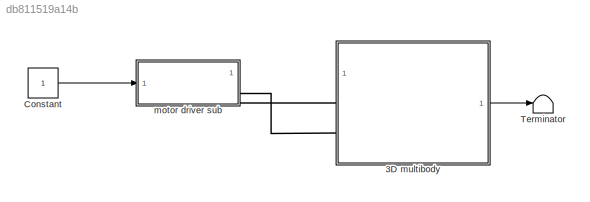
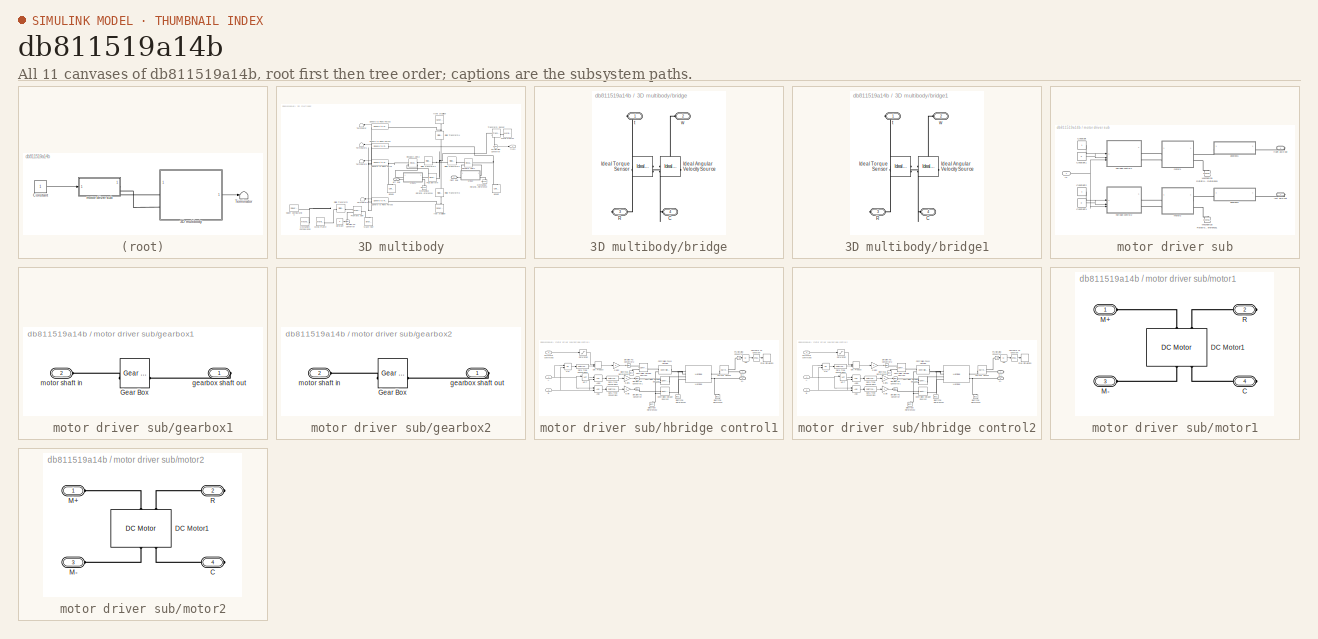
[diagram: thumbnail index - all 11 canvases of the model, root first then tree order]
MODEL slx_db811519a14b
KIND model
CONFIG AbsTol = auto
CONFIG EnableMultiTasking = off
CONFIG FixedStep = auto
CONFIG MaxStep = 0.05
CONFIG MinStep = auto
CONFIG RelTol = 1e-3
CONFIG SampleTimeConstraint = Unconstrained
CONFIG SolverName = VariableStepAuto
CONFIG StartTime = 0.0
CONFIG StopTime = 5
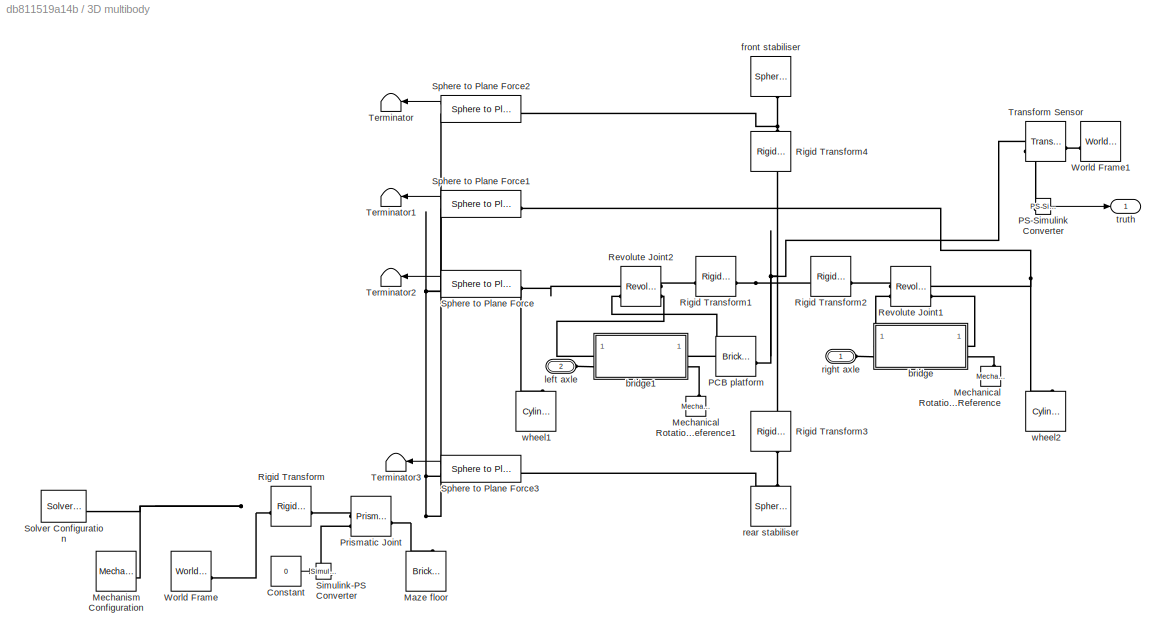
BLOCK [SubSystem] 3D multibody
BLOCK [Constant] 3D multibody/Constant
  Value = 0
BLOCK [Reference] 3D multibody/Maze floor  REF=sm_lib/Body Elements/Brick Solid
  NameLocation = right
  SourceBlock = sm_lib/Body Elements/Brick Solid
  SourceType = Brick Solid
BLOCK [Reference] 3D multibody/Mechanical Rotational Reference  REF=fl_lib/Mechanical/Rotational Elements/Mechanical
Rotational Reference
  NameLocation = right
  SourceBlock = fl_lib/Mechanical/Rotational Elements/Mechanical\nRotational Reference
  SourceType = Mechanical\nRotational Reference
BLOCK [Reference] 3D multibody/Mechanical Rotational Reference1  REF=fl_lib/Mechanical/Rotational Elements/Mechanical
Rotational Reference
  NameLocation = right
  SourceBlock = fl_lib/Mechanical/Rotational Elements/Mechanical\nRotational Reference
  SourceType = Mechanical\nRotational Reference
BLOCK [Reference] 3D multibody/Mechanism Configuration  REF=sm_lib/Utilities/Mechanism
Configuration
  SourceBlock = sm_lib/Utilities/Mechanism\nConfiguration
  SourceType = Mechanism\nConfiguration
BLOCK [Reference] 3D multibody/PCB platform  REF=sm_lib/Body Elements/Brick Solid
  SourceBlock = sm_lib/Body Elements/Brick Solid
  SourceType = Brick Solid
BLOCK [Reference] 3D multibody/PS-Simulink Converter  REF=nesl_utility/PS-Simulink
Converter
  SourceBlock = nesl_utility/PS-Simulink\nConverter
  SourceType = PS-Simulink\nConverter
BLOCK [Reference] 3D multibody/Prismatic Joint  REF=sm_lib/Joints/Prismatic
Joint
  SourceBlock = sm_lib/Joints/Prismatic\nJoint
  SourceType = Prismatic\nJoint
BLOCK [Reference] 3D multibody/Revolute Joint1  REF=sm_lib/Joints/Revolute Joint
  SourceBlock = sm_lib/Joints/Revolute Joint
  SourceType = Revolute Joint
BLOCK [Reference] 3D multibody/Revolute Joint2  REF=sm_lib/Joints/Revolute Joint
  NameLocation = top
  SourceBlock = sm_lib/Joints/Revolute Joint
  SourceType = Revolute Joint
BLOCK [Reference] 3D multibody/Rigid Transform  REF=sm_lib/Frames and
Transforms/Rigid
Transform
  SourceBlock = sm_lib/Frames and\nTransforms/Rigid\nTransform
  SourceType = Rigid\nTransform
BLOCK [Reference] 3D multibody/Rigid Transform1  REF=sm_lib/Frames and
Transforms/Rigid
Transform
  NameLocation = top
  SourceBlock = sm_lib/Frames and\nTransforms/Rigid\nTransform
  SourceType = Rigid\nTransform
BLOCK [Reference] 3D multibody/Rigid Transform2  REF=sm_lib/Frames and
Transforms/Rigid
Transform
  SourceBlock = sm_lib/Frames and\nTransforms/Rigid\nTransform
  SourceType = Rigid\nTransform
BLOCK [Reference] 3D multibody/Rigid Transform3  REF=sm_lib/Frames and
Transforms/Rigid
Transform
  NameLocation = left
  SourceBlock = sm_lib/Frames and\nTransforms/Rigid\nTransform
  SourceType = Rigid\nTransform
BLOCK [Reference] 3D multibody/Rigid Transform4  REF=sm_lib/Frames and
Transforms/Rigid
Transform
  NameLocation = right
  SourceBlock = sm_lib/Frames and\nTransforms/Rigid\nTransform
  SourceType = Rigid\nTransform
BLOCK [Reference] 3D multibody/Simulink-PS Converter  REF=nesl_utility/Simulink-PS
Converter
  SourceBlock = nesl_utility/Simulink-PS\nConverter
  SourceType = Simulink-PS\nConverter
BLOCK [Reference] 3D multibody/Solver Configuration  REF=nesl_utility/Solver
Configuration
  SourceBlock = nesl_utility/Solver\nConfiguration
  SourceType = Solver\nConfiguration
BLOCK [Reference] 3D multibody/Sphere to Plane Force  REF=Contact_Forces_Lib/3D/Sphere to Plane Force
  SourceBlock = Contact_Forces_Lib/3D/Sphere to Plane Force
  SourceType = Sphere to Plane Force
BLOCK [Reference] 3D multibody/Sphere to Plane Force1  REF=Contact_Forces_Lib/3D/Sphere to Plane Force
  SourceBlock = Contact_Forces_Lib/3D/Sphere to Plane Force
  SourceType = Sphere to Plane Force
BLOCK [Reference] 3D multibody/Sphere to Plane Force2  REF=Contact_Forces_Lib/3D/Sphere to Plane Force
  SourceBlock = Contact_Forces_Lib/3D/Sphere to Plane Force
  SourceType = Sphere to Plane Force
BLOCK [Reference] 3D multibody/Sphere to Plane Force3  REF=Contact_Forces_Lib/3D/Sphere to Plane Force
  SourceBlock = Contact_Forces_Lib/3D/Sphere to Plane Force
  SourceType = Sphere to Plane Force
BLOCK [Terminator] 3D multibody/Terminator
  NameLocation = top
BLOCK [Terminator] 3D multibody/Terminator1
  NameLocation = top
BLOCK [Terminator] 3D multibody/Terminator2
  NameLocation = top
BLOCK [Terminator] 3D multibody/Terminator3
  NameLocation = top
BLOCK [Reference] 3D multibody/Transform Sensor  REF=sm_lib/Frames and
Transforms/Transform
Sensor
  NameLocation = top
  SourceBlock = sm_lib/Frames and\nTransforms/Transform\nSensor
  SourceType = Transform\nSensor
BLOCK [Reference] 3D multibody/World Frame  REF=sm_lib/Frames and
Transforms/World Frame
  SourceBlock = sm_lib/Frames and\nTransforms/World Frame
  SourceType = World Frame
BLOCK [Reference] 3D multibody/World Frame1  REF=sm_lib/Frames and
Transforms/World Frame
  NameLocation = top
  SourceBlock = sm_lib/Frames and\nTransforms/World Frame
  SourceType = World Frame
BLOCK [SubSystem] 3D multibody/bridge
BLOCK [PMIOPort] 3D multibody/bridge/C
  Port = 4
  Side = Right
BLOCK [Reference] 3D multibody/bridge/Ideal Angular Velocity Source  REF=fl_lib/Mechanical/Mechanical Sources/Ideal Angular
Velocity Source
  NameLocation = top
  SourceBlock = fl_lib/Mechanical/Mechanical Sources/Ideal Angular\nVelocity Source
  SourceType = Ideal Angular\nVelocity Source
BLOCK [Reference] 3D multibody/bridge/Ideal Torque Sensor  REF=fl_lib/Mechanical/Mechanical Sensors/Ideal Torque Sensor
  NameLocation = top
  SourceBlock = fl_lib/Mechanical/Mechanical Sensors/Ideal Torque Sensor
  SourceType = Ideal Torque Sensor
BLOCK [PMIOPort] 3D multibody/bridge/R
  Port = 3
  Side = Left
BLOCK [PMIOPort] 3D multibody/bridge/t
  Side = Left
BLOCK [PMIOPort] 3D multibody/bridge/w
  Port = 2
  Side = Right
BLOCK [SubSystem] 3D multibody/bridge1
BLOCK [PMIOPort] 3D multibody/bridge1/C
  Port = 4
  Side = Right
BLOCK [Reference] 3D multibody/bridge1/Ideal Angular Velocity Source  REF=fl_lib/Mechanical/Mechanical Sources/Ideal Angular
Velocity Source
  NameLocation = top
  SourceBlock = fl_lib/Mechanical/Mechanical Sources/Ideal Angular\nVelocity Source
  SourceType = Ideal Angular\nVelocity Source
BLOCK [Reference] 3D multibody/bridge1/Ideal Torque Sensor  REF=fl_lib/Mechanical/Mechanical Sensors/Ideal Torque Sensor
  NameLocation = top
  SourceBlock = fl_lib/Mechanical/Mechanical Sensors/Ideal Torque Sensor
  SourceType = Ideal Torque Sensor
BLOCK [PMIOPort] 3D multibody/bridge1/R
  Port = 3
  Side = Left
BLOCK [PMIOPort] 3D multibody/bridge1/t
  Side = Left
BLOCK [PMIOPort] 3D multibody/bridge1/w
  Port = 2
  Side = Right
BLOCK [Reference] 3D multibody/front stabiliser  REF=sm_lib/Body Elements/Spherical Solid
  NameLocation = left
  SourceBlock = sm_lib/Body Elements/Spherical Solid
  SourceType = Spherical Solid
BLOCK [PMIOPort] 3D multibody/left axle
  Port = 2
  Side = Left
BLOCK [Reference] 3D multibody/rear stabiliser  REF=sm_lib/Body Elements/Spherical Solid
  NameLocation = right
  SourceBlock = sm_lib/Body Elements/Spherical Solid
  SourceType = Spherical Solid
BLOCK [PMIOPort] 3D multibody/right axle
  Side = Left
BLOCK [Outport] 3D multibody/truth
BLOCK [Reference] 3D multibody/wheel1  REF=sm_lib/Body Elements/Cylindrical Solid
  NameLocation = right
  SourceBlock = sm_lib/Body Elements/Cylindrical Solid
  SourceType = Cylindrical Solid
BLOCK [Reference] 3D multibody/wheel2  REF=sm_lib/Body Elements/Cylindrical Solid
  NameLocation = right
  SourceBlock = sm_lib/Body Elements/Cylindrical Solid
  SourceType = Cylindrical Solid
BLOCK [Constant] Constant
BLOCK [Terminator] Terminator
BLOCK [SubSystem] motor driver sub
BLOCK [Constant] motor driver sub/Constant
BLOCK [Constant] motor driver sub/Constant1
  Value = 0
BLOCK [Constant] motor driver sub/Constant2
BLOCK [Constant] motor driver sub/Constant3
  Value = 0
BLOCK [Reference] motor driver sub/Mechanical Rotational Reference  REF=fl_lib/Mechanical/Rotational Elements/Mechanical
Rotational Reference
  NameLocation = right
  SourceBlock = fl_lib/Mechanical/Rotational Elements/Mechanical\nRotational Reference
  SourceType = Mechanical\nRotational Reference
BLOCK [Reference] motor driver sub/Mechanical Rotational Reference1  REF=fl_lib/Mechanical/Rotational Elements/Mechanical
Rotational Reference
  NameLocation = right
  SourceBlock = fl_lib/Mechanical/Rotational Elements/Mechanical\nRotational Reference
  SourceType = Mechanical\nRotational Reference
BLOCK [SubSystem] motor driver sub/gearbox1
BLOCK [Reference] motor driver sub/gearbox1/Gear Box  REF=fl_lib/Mechanical/Mechanisms/Gear Box
  SourceBlock = fl_lib/Mechanical/Mechanisms/Gear Box
  SourceType = Gear Box
BLOCK [PMIOPort] motor driver sub/gearbox1/gearbox shaft out
  Side = Right
BLOCK [PMIOPort] motor driver sub/gearbox1/motor shaft in
  NameLocation = top
  Port = 2
  Side = Left
BLOCK [SubSystem] motor driver sub/gearbox2
BLOCK [Reference] motor driver sub/gearbox2/Gear Box  REF=fl_lib/Mechanical/Mechanisms/Gear Box
  SourceBlock = fl_lib/Mechanical/Mechanisms/Gear Box
  SourceType = Gear Box
BLOCK [PMIOPort] motor driver sub/gearbox2/gearbox shaft out
  Side = Right
BLOCK [PMIOPort] motor driver sub/gearbox2/motor shaft in
  NameLocation = top
  Port = 2
  Side = Left
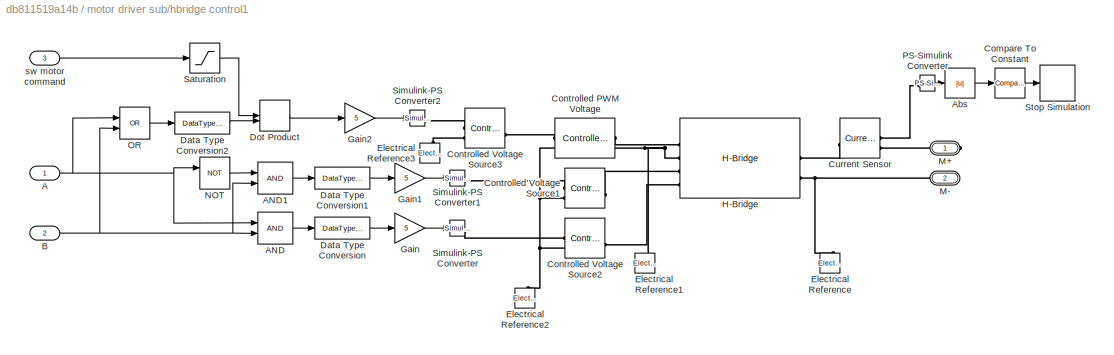
BLOCK [SubSystem] motor driver sub/hbridge control1
BLOCK [Inport] motor driver sub/hbridge control1/A
BLOCK [Logic] motor driver sub/hbridge control1/AND
  AllPortsSameDT = off
  IconShape = distinctive
  OutDataTypeStr = boolean
BLOCK [Logic] motor driver sub/hbridge control1/AND1
  AllPortsSameDT = off
  IconShape = distinctive
  OutDataTypeStr = boolean
BLOCK [Abs] motor driver sub/hbridge control1/Abs
  SaturateOnIntegerOverflow = off
BLOCK [Inport] motor driver sub/hbridge control1/B
  Port = 2
BLOCK [Reference] motor driver sub/hbridge control1/Compare To Constant  REF=simulink/Logic and Bit
Operations/Compare
To Constant
  SourceBlock = simulink/Logic and Bit\nOperations/Compare\nTo Constant
  SourceType = Compare To Constant
BLOCK [Reference] motor driver sub/hbridge control1/Controlled PWM Voltage  REF=ee_lib/Integrated Circuits/Controlled PWM
Voltage
  SourceBlock = ee_lib/Integrated Circuits/Controlled PWM\nVoltage
  SourceType = Controlled PWM\nVoltage
BLOCK [Reference] motor driver sub/hbridge control1/Controlled Voltage Source1  REF=fl_lib/Electrical/Electrical Sources/Controlled Voltage
Source
  SourceBlock = fl_lib/Electrical/Electrical Sources/Controlled Voltage\nSource
  SourceType = Controlled Voltage\nSource
BLOCK [Reference] motor driver sub/hbridge control1/Controlled Voltage Source2  REF=fl_lib/Electrical/Electrical Sources/Controlled Voltage
Source
  SourceBlock = fl_lib/Electrical/Electrical Sources/Controlled Voltage\nSource
  SourceType = Controlled Voltage\nSource
BLOCK [Reference] motor driver sub/hbridge control1/Controlled Voltage Source3  REF=fl_lib/Electrical/Electrical Sources/Controlled Voltage
Source
  SourceBlock = fl_lib/Electrical/Electrical Sources/Controlled Voltage\nSource
  SourceType = Controlled Voltage\nSource
BLOCK [Reference] motor driver sub/hbridge control1/Current Sensor  REF=fl_lib/Electrical/Electrical Sensors/Current Sensor
  SourceBlock = fl_lib/Electrical/Electrical Sensors/Current Sensor
  SourceType = Current Sensor
BLOCK [DataTypeConversion] motor driver sub/hbridge control1/Data Type Conversion
  OutDataTypeStr = double
  RndMeth = Floor
  SaturateOnIntegerOverflow = off
BLOCK [DataTypeConversion] motor driver sub/hbridge control1/Data Type Conversion1
  OutDataTypeStr = double
  RndMeth = Floor
  SaturateOnIntegerOverflow = off
BLOCK [DataTypeConversion] motor driver sub/hbridge control1/Data Type Conversion2
  OutDataTypeStr = double
  RndMeth = Floor
  SaturateOnIntegerOverflow = off
BLOCK [DotProduct] motor driver sub/hbridge control1/Dot Product
  OutDataTypeStr = Inherit: Inherit via internal rule
BLOCK [Reference] motor driver sub/hbridge control1/Electrical Reference  REF=fl_lib/Electrical/Electrical Elements/Electrical Reference
  NameLocation = right
  SourceBlock = fl_lib/Electrical/Electrical Elements/Electrical Reference
  SourceType = Electrical Reference
BLOCK [Reference] motor driver sub/hbridge control1/Electrical Reference1  REF=fl_lib/Electrical/Electrical Elements/Electrical Reference
  NameLocation = right
  SourceBlock = fl_lib/Electrical/Electrical Elements/Electrical Reference
  SourceType = Electrical Reference
BLOCK [Reference] motor driver sub/hbridge control1/Electrical Reference2  REF=fl_lib/Electrical/Electrical Elements/Electrical Reference
  NameLocation = right
  SourceBlock = fl_lib/Electrical/Electrical Elements/Electrical Reference
  SourceType = Electrical Reference
BLOCK [Reference] motor driver sub/hbridge control1/Electrical Reference3  REF=fl_lib/Electrical/Electrical Elements/Electrical Reference
  NameLocation = right
  SourceBlock = fl_lib/Electrical/Electrical Elements/Electrical Reference
  SourceType = Electrical Reference
BLOCK [Gain] motor driver sub/hbridge control1/Gain
  Gain = 5
BLOCK [Gain] motor driver sub/hbridge control1/Gain1
  Gain = 5
BLOCK [Gain] motor driver sub/hbridge control1/Gain2
  Gain = 5
BLOCK [Reference] motor driver sub/hbridge control1/H-Bridge  REF=ee_lib/Semiconductors &
Converters/Converters/H-Bridge
  SourceBlock = ee_lib/Semiconductors &\nConverters/Converters/H-Bridge
  SourceType = H-Bridge
BLOCK [PMIOPort] motor driver sub/hbridge control1/M+
  NameLocation = top
  Side = Right
BLOCK [PMIOPort] motor driver sub/hbridge control1/M-
  Port = 2
  Side = Right
BLOCK [Logic] motor driver sub/hbridge control1/NOT
  AllPortsSameDT = off
  IconShape = distinctive
  Operator = NOT
  OutDataTypeStr = boolean
BLOCK [Logic] motor driver sub/hbridge control1/OR
  AllPortsSameDT = off
  IconShape = distinctive
  Operator = OR
  OutDataTypeStr = boolean
BLOCK [Reference] motor driver sub/hbridge control1/PS-Simulink Converter  REF=nesl_utility/PS-Simulink
Converter
  SourceBlock = nesl_utility/PS-Simulink\nConverter
  SourceType = PS-Simulink\nConverter
BLOCK [Saturate] motor driver sub/hbridge control1/Saturation
  LowerLimit = 0
  UpperLimit = 1
BLOCK [Reference] motor driver sub/hbridge control1/Simulink-PS Converter  REF=nesl_utility/Simulink-PS
Converter
  SourceBlock = nesl_utility/Simulink-PS\nConverter
  SourceType = Simulink-PS\nConverter
BLOCK [Reference] motor driver sub/hbridge control1/Simulink-PS Converter1  REF=nesl_utility/Simulink-PS
Converter
  SourceBlock = nesl_utility/Simulink-PS\nConverter
  SourceType = Simulink-PS\nConverter
BLOCK [Reference] motor driver sub/hbridge control1/Simulink-PS Converter2  REF=nesl_utility/Simulink-PS
Converter
  SourceBlock = nesl_utility/Simulink-PS\nConverter
  SourceType = Simulink-PS\nConverter
BLOCK [Stop] motor driver sub/hbridge control1/Stop Simulation
  Commented = on
BLOCK [Inport] motor driver sub/hbridge control1/sw  motor command
  Port = 3
BLOCK [SubSystem] motor driver sub/hbridge control2
BLOCK [Inport] motor driver sub/hbridge control2/A
BLOCK [Logic] motor driver sub/hbridge control2/AND
  AllPortsSameDT = off
  IconShape = distinctive
  OutDataTypeStr = boolean
BLOCK [Logic] motor driver sub/hbridge control2/AND1
  AllPortsSameDT = off
  IconShape = distinctive
  OutDataTypeStr = boolean
BLOCK [Abs] motor driver sub/hbridge control2/Abs
  SaturateOnIntegerOverflow = off
BLOCK [Inport] motor driver sub/hbridge control2/B
  Port = 2
BLOCK [Reference] motor driver sub/hbridge control2/Compare To Constant  REF=simulink/Logic and Bit
Operations/Compare
To Constant
  SourceBlock = simulink/Logic and Bit\nOperations/Compare\nTo Constant
  SourceType = Compare To Constant
BLOCK [Reference] motor driver sub/hbridge control2/Controlled PWM Voltage  REF=ee_lib/Integrated Circuits/Controlled PWM
Voltage
  SourceBlock = ee_lib/Integrated Circuits/Controlled PWM\nVoltage
  SourceType = Controlled PWM\nVoltage
BLOCK [Reference] motor driver sub/hbridge control2/Controlled Voltage Source1  REF=fl_lib/Electrical/Electrical Sources/Controlled Voltage
Source
  SourceBlock = fl_lib/Electrical/Electrical Sources/Controlled Voltage\nSource
  SourceType = Controlled Voltage\nSource
BLOCK [Reference] motor driver sub/hbridge control2/Controlled Voltage Source2  REF=fl_lib/Electrical/Electrical Sources/Controlled Voltage
Source
  SourceBlock = fl_lib/Electrical/Electrical Sources/Controlled Voltage\nSource
  SourceType = Controlled Voltage\nSource
BLOCK [Reference] motor driver sub/hbridge control2/Controlled Voltage Source3  REF=fl_lib/Electrical/Electrical Sources/Controlled Voltage
Source
  SourceBlock = fl_lib/Electrical/Electrical Sources/Controlled Voltage\nSource
  SourceType = Controlled Voltage\nSource
BLOCK [Reference] motor driver sub/hbridge control2/Current Sensor  REF=fl_lib/Electrical/Electrical Sensors/Current Sensor
  SourceBlock = fl_lib/Electrical/Electrical Sensors/Current Sensor
  SourceType = Current Sensor
BLOCK [DataTypeConversion] motor driver sub/hbridge control2/Data Type Conversion
  OutDataTypeStr = double
  RndMeth = Floor
  SaturateOnIntegerOverflow = off
BLOCK [DataTypeConversion] motor driver sub/hbridge control2/Data Type Conversion1
  OutDataTypeStr = double
  RndMeth = Floor
  SaturateOnIntegerOverflow = off
BLOCK [DataTypeConversion] motor driver sub/hbridge control2/Data Type Conversion2
  OutDataTypeStr = double
  RndMeth = Floor
  SaturateOnIntegerOverflow = off
BLOCK [DotProduct] motor driver sub/hbridge control2/Dot Product
  OutDataTypeStr = Inherit: Inherit via internal rule
BLOCK [Reference] motor driver sub/hbridge control2/Electrical Reference  REF=fl_lib/Electrical/Electrical Elements/Electrical Reference
  NameLocation = right
  SourceBlock = fl_lib/Electrical/Electrical Elements/Electrical Reference
  SourceType = Electrical Reference
BLOCK [Reference] motor driver sub/hbridge control2/Electrical Reference1  REF=fl_lib/Electrical/Electrical Elements/Electrical Reference
  NameLocation = right
  SourceBlock = fl_lib/Electrical/Electrical Elements/Electrical Reference
  SourceType = Electrical Reference
BLOCK [Reference] motor driver sub/hbridge control2/Electrical Reference2  REF=fl_lib/Electrical/Electrical Elements/Electrical Reference
  NameLocation = right
  SourceBlock = fl_lib/Electrical/Electrical Elements/Electrical Reference
  SourceType = Electrical Reference
BLOCK [Reference] motor driver sub/hbridge control2/Electrical Reference3  REF=fl_lib/Electrical/Electrical Elements/Electrical Reference
  NameLocation = right
  SourceBlock = fl_lib/Electrical/Electrical Elements/Electrical Reference
  SourceType = Electrical Reference
BLOCK [Gain] motor driver sub/hbridge control2/Gain
  Gain = 5
BLOCK [Gain] motor driver sub/hbridge control2/Gain1
  Gain = 5
BLOCK [Gain] motor driver sub/hbridge control2/Gain2
  Gain = 5
BLOCK [Reference] motor driver sub/hbridge control2/H-Bridge  REF=ee_lib/Semiconductors &
Converters/Converters/H-Bridge
  SourceBlock = ee_lib/Semiconductors &\nConverters/Converters/H-Bridge
  SourceType = H-Bridge
BLOCK [PMIOPort] motor driver sub/hbridge control2/M+
  NameLocation = top
  Side = Right
BLOCK [PMIOPort] motor driver sub/hbridge control2/M-
  Port = 2
  Side = Right
BLOCK [Logic] motor driver sub/hbridge control2/NOT
  AllPortsSameDT = off
  IconShape = distinctive
  Operator = NOT
  OutDataTypeStr = boolean
BLOCK [Logic] motor driver sub/hbridge control2/OR
  AllPortsSameDT = off
  IconShape = distinctive
  Operator = OR
  OutDataTypeStr = boolean
BLOCK [Reference] motor driver sub/hbridge control2/PS-Simulink Converter  REF=nesl_utility/PS-Simulink
Converter
  SourceBlock = nesl_utility/PS-Simulink\nConverter
  SourceType = PS-Simulink\nConverter
BLOCK [Saturate] motor driver sub/hbridge control2/Saturation
  LowerLimit = 0
  UpperLimit = 1
BLOCK [Reference] motor driver sub/hbridge control2/Simulink-PS Converter  REF=nesl_utility/Simulink-PS
Converter
  SourceBlock = nesl_utility/Simulink-PS\nConverter
  SourceType = Simulink-PS\nConverter
BLOCK [Reference] motor driver sub/hbridge control2/Simulink-PS Converter1  REF=nesl_utility/Simulink-PS
Converter
  SourceBlock = nesl_utility/Simulink-PS\nConverter
  SourceType = Simulink-PS\nConverter
BLOCK [Reference] motor driver sub/hbridge control2/Simulink-PS Converter2  REF=nesl_utility/Simulink-PS
Converter
  SourceBlock = nesl_utility/Simulink-PS\nConverter
  SourceType = Simulink-PS\nConverter
BLOCK [Stop] motor driver sub/hbridge control2/Stop Simulation
  Commented = on
BLOCK [Inport] motor driver sub/hbridge control2/sw  motor command
  Port = 3
BLOCK [Inport] motor driver sub/in
BLOCK [PMIOPort] motor driver sub/left axle out
  NameLocation = top
  Port = 2
  Side = Right
BLOCK [SubSystem] motor driver sub/motor1
BLOCK [PMIOPort] motor driver sub/motor1/C
  Port = 4
  Side = Right
BLOCK [Reference] motor driver sub/motor1/DC Motor1  REF=ee_lib/Electromechanical/Brushed Motors/DC Motor
  NameLocation = right
  SourceBlock = ee_lib/Electromechanical/Brushed Motors/DC Motor
  SourceType = DC Motor
BLOCK [PMIOPort] motor driver sub/motor1/M+
  Side = Left
BLOCK [PMIOPort] motor driver sub/motor1/M-
  NameLocation = top
  Port = 3
  Side = Left
BLOCK [PMIOPort] motor driver sub/motor1/R
  NameLocation = top
  Port = 2
  Side = Right
BLOCK [SubSystem] motor driver sub/motor2
BLOCK [PMIOPort] motor driver sub/motor2/C
  Port = 4
  Side = Right
BLOCK [Reference] motor driver sub/motor2/DC Motor1  REF=ee_lib/Electromechanical/Brushed Motors/DC Motor
  NameLocation = right
  SourceBlock = ee_lib/Electromechanical/Brushed Motors/DC Motor
  SourceType = DC Motor
BLOCK [PMIOPort] motor driver sub/motor2/M+
  Side = Left
BLOCK [PMIOPort] motor driver sub/motor2/M-
  NameLocation = top
  Port = 3
  Side = Left
BLOCK [PMIOPort] motor driver sub/motor2/R
  NameLocation = top
  Port = 2
  Side = Right
BLOCK [PMIOPort] motor driver sub/right axle out
  NameLocation = top
  Side = Right
LINE 3D multibody/Constant:1 -> 3D multibody/Simulink-PS Converter:1
LINE 3D multibody/PS-Simulink Converter:1 -> 3D multibody/truth:1
LINE 3D multibody/Sphere to Plane Force1:1 -> 3D multibody/Terminator1:1
LINE 3D multibody/Sphere to Plane Force2:1 -> 3D multibody/Terminator:1
LINE 3D multibody/Sphere to Plane Force3:1 -> 3D multibody/Terminator3:1
LINE 3D multibody/Sphere to Plane Force:1 -> 3D multibody/Terminator2:1
LINE 3D multibody:1 -> Terminator:1
LINE Constant:1 -> motor driver sub:1
LINE motor driver sub/Constant1:1 -> motor driver sub/hbridge control1:2
LINE motor driver sub/Constant2:1 -> motor driver sub/hbridge control2:1
LINE motor driver sub/Constant3:1 -> motor driver sub/hbridge control2:2
LINE motor driver sub/Constant:1 -> motor driver sub/hbridge control1:1
NET motor driver sub/hbridge control1/A:1 -> motor driver sub/hbridge control1/AND:1, motor driver sub/hbridge control1/NOT:1, motor driver sub/hbridge control1/OR:1
LINE motor driver sub/hbridge control1/AND1:1 -> motor driver sub/hbridge control1/Data Type Conversion1:1
LINE motor driver sub/hbridge control1/AND:1 -> motor driver sub/hbridge control1/Data Type Conversion:1
LINE motor driver sub/hbridge control1/Abs:1 -> motor driver sub/hbridge control1/Compare To Constant:1
NET motor driver sub/hbridge control1/B:1 -> motor driver sub/hbridge control1/AND1:2, motor driver sub/hbridge control1/AND:2, motor driver sub/hbridge control1/OR:2
LINE motor driver sub/hbridge control1/Compare To Constant:1 -> motor driver sub/hbridge control1/Stop Simulation:1
LINE motor driver sub/hbridge control1/Data Type Conversion1:1 -> motor driver sub/hbridge control1/Gain1:1
LINE motor driver sub/hbridge control1/Data Type Conversion2:1 -> motor driver sub/hbridge control1/Dot Product:2
LINE motor driver sub/hbridge control1/Data Type Conversion:1 -> motor driver sub/hbridge control1/Gain:1
LINE motor driver sub/hbridge control1/Dot Product:1 -> motor driver sub/hbridge control1/Gain2:1
LINE motor driver sub/hbridge control1/Gain1:1 -> motor driver sub/hbridge control1/Simulink-PS Converter1:1
LINE motor driver sub/hbridge control1/Gain2:1 -> motor driver sub/hbridge control1/Simulink-PS Converter2:1
LINE motor driver sub/hbridge control1/Gain:1 -> motor driver sub/hbridge control1/Simulink-PS Converter:1
LINE motor driver sub/hbridge control1/NOT:1 -> motor driver sub/hbridge control1/AND1:1
LINE motor driver sub/hbridge control1/OR:1 -> motor driver sub/hbridge control1/Data Type Conversion2:1
LINE motor driver sub/hbridge control1/PS-Simulink Converter:1 -> motor driver sub/hbridge control1/Abs:1
LINE motor driver sub/hbridge control1/Saturation:1 -> motor driver sub/hbridge control1/Dot Product:1
LINE motor driver sub/hbridge control1/sw  motor command:1 -> motor driver sub/hbridge control1/Saturation:1
NET motor driver sub/hbridge control2/A:1 -> motor driver sub/hbridge control2/AND:1, motor driver sub/hbridge control2/NOT:1, motor driver sub/hbridge control2/OR:1
LINE motor driver sub/hbridge control2/AND1:1 -> motor driver sub/hbridge control2/Data Type Conversion1:1
LINE motor driver sub/hbridge control2/AND:1 -> motor driver sub/hbridge control2/Data Type Conversion:1
LINE motor driver sub/hbridge control2/Abs:1 -> motor driver sub/hbridge control2/Compare To Constant:1
NET motor driver sub/hbridge control2/B:1 -> motor driver sub/hbridge control2/AND1:2, motor driver sub/hbridge control2/AND:2, motor driver sub/hbridge control2/OR:2
LINE motor driver sub/hbridge control2/Compare To Constant:1 -> motor driver sub/hbridge control2/Stop Simulation:1
LINE motor driver sub/hbridge control2/Data Type Conversion1:1 -> motor driver sub/hbridge control2/Gain1:1
LINE motor driver sub/hbridge control2/Data Type Conversion2:1 -> motor driver sub/hbridge control2/Dot Product:2
LINE motor driver sub/hbridge control2/Data Type Conversion:1 -> motor driver sub/hbridge control2/Gain:1
LINE motor driver sub/hbridge control2/Dot Product:1 -> motor driver sub/hbridge control2/Gain2:1
LINE motor driver sub/hbridge control2/Gain1:1 -> motor driver sub/hbridge control2/Simulink-PS Converter1:1
LINE motor driver sub/hbridge control2/Gain2:1 -> motor driver sub/hbridge control2/Simulink-PS Converter2:1
LINE motor driver sub/hbridge control2/Gain:1 -> motor driver sub/hbridge control2/Simulink-PS Converter:1
LINE motor driver sub/hbridge control2/NOT:1 -> motor driver sub/hbridge control2/AND1:1
LINE motor driver sub/hbridge control2/OR:1 -> motor driver sub/hbridge control2/Data Type Conversion2:1
LINE motor driver sub/hbridge control2/PS-Simulink Converter:1 -> motor driver sub/hbridge control2/Abs:1
LINE motor driver sub/hbridge control2/Saturation:1 -> motor driver sub/hbridge control2/Dot Product:1
LINE motor driver sub/hbridge control2/sw  motor command:1 -> motor driver sub/hbridge control2/Saturation:1
NET motor driver sub/in:1 -> motor driver sub/hbridge control1:3, motor driver sub/hbridge control2:3
PNET net1: 3D multibody/Maze floor:RConn1 -- 3D multibody/Prismatic Joint:RConn1 -- 3D multibody/Sphere to Plane Force1:RConn1 -- 3D multibody/Sphere to Plane Force2:RConn1 -- 3D multibody/Sphere to Plane Force3:RConn1 -- 3D multibody/Sphere to Plane Force:RConn1
PLINE 3D multibody/Mechanical Rotational Reference1:LConn1 -- 3D multibody/bridge1:RConn2
PLINE 3D multibody/Mechanical Rotational Reference:LConn1 -- 3D multibody/bridge:RConn2
PNET net2: 3D multibody/Mechanism Configuration:RConn1 -- 3D multibody/Rigid Transform:LConn1 -- 3D multibody/Solver Configuration:RConn1 -- 3D multibody/World Frame:RConn1
PNET net3: 3D multibody/PCB platform:RConn1 -- 3D multibody/Rigid Transform1:LConn1 -- 3D multibody/Rigid Transform2:LConn1 -- 3D multibody/Rigid Transform3:LConn1 -- 3D multibody/Rigid Transform4:LConn1 -- 3D multibody/Transform Sensor:RConn1
PLINE 3D multibody/PS-Simulink Converter:LConn1 -- 3D multibody/Transform Sensor:RConn2
PLINE 3D multibody/Prismatic Joint:LConn1 -- 3D multibody/Rigid Transform:RConn1
PLINE 3D multibody/Prismatic Joint:LConn2 -- 3D multibody/Simulink-PS Converter:RConn1
PLINE 3D multibody/Revolute Joint1:LConn1 -- 3D multibody/Rigid Transform2:RConn1
PLINE 3D multibody/Revolute Joint1:LConn2 -- 3D multibody/bridge:LConn1
PNET net4: 3D multibody/Revolute Joint1:RConn1 -- 3D multibody/Sphere to Plane Force1:LConn1 -- 3D multibody/wheel2:RConn1
PLINE 3D multibody/Revolute Joint1:RConn2 -- 3D multibody/bridge:RConn1
PLINE 3D multibody/Revolute Joint2:LConn1 -- 3D multibody/Rigid Transform1:RConn1
PLINE 3D multibody/Revolute Joint2:LConn2 -- 3D multibody/bridge1:LConn1
PNET net5: 3D multibody/Revolute Joint2:RConn1 -- 3D multibody/Sphere to Plane Force:LConn1 -- 3D multibody/wheel1:RConn1
PLINE 3D multibody/Revolute Joint2:RConn2 -- 3D multibody/bridge1:RConn1
PNET net6: 3D multibody/Rigid Transform3:RConn1 -- 3D multibody/Sphere to Plane Force3:LConn1 -- 3D multibody/rear stabiliser:RConn1
PNET net7: 3D multibody/Rigid Transform4:RConn1 -- 3D multibody/Sphere to Plane Force2:LConn1 -- 3D multibody/front stabiliser:RConn1
PLINE 3D multibody/Transform Sensor:LConn1 -- 3D multibody/World Frame1:RConn1
PLINE 3D multibody/bridge/C:RConn1 -- 3D multibody/bridge/Ideal Angular Velocity Source:RConn2
PLINE 3D multibody/bridge/Ideal Angular Velocity Source:LConn1 -- 3D multibody/bridge/Ideal Torque Sensor:LConn1
PLINE 3D multibody/bridge/Ideal Angular Velocity Source:RConn1 -- 3D multibody/bridge/w:RConn1
PLINE 3D multibody/bridge/Ideal Torque Sensor:RConn1 -- 3D multibody/bridge/R:RConn1
PLINE 3D multibody/bridge/Ideal Torque Sensor:RConn2 -- 3D multibody/bridge/t:RConn1
PLINE 3D multibody/bridge1/C:RConn1 -- 3D multibody/bridge1/Ideal Angular Velocity Source:RConn2
PLINE 3D multibody/bridge1/Ideal Angular Velocity Source:LConn1 -- 3D multibody/bridge1/Ideal Torque Sensor:LConn1
PLINE 3D multibody/bridge1/Ideal Angular Velocity Source:RConn1 -- 3D multibody/bridge1/w:RConn1
PLINE 3D multibody/bridge1/Ideal Torque Sensor:RConn1 -- 3D multibody/bridge1/R:RConn1
PLINE 3D multibody/bridge1/Ideal Torque Sensor:RConn2 -- 3D multibody/bridge1/t:RConn1
PLINE 3D multibody/bridge1:LConn2 -- 3D multibody/left axle:RConn1
PLINE 3D multibody/bridge:LConn2 -- 3D multibody/right axle:RConn1
PLINE 3D multibody:LConn1 -- motor driver sub:RConn1
PLINE 3D multibody:LConn2 -- motor driver sub:RConn2
PLINE motor driver sub/Mechanical Rotational Reference1:LConn1 -- motor driver sub/motor2:RConn2
PLINE motor driver sub/Mechanical Rotational Reference:LConn1 -- motor driver sub/motor1:RConn2
PLINE motor driver sub/gearbox1/Gear Box:LConn1 -- motor driver sub/gearbox1/motor shaft in:RConn1
PLINE motor driver sub/gearbox1/Gear Box:RConn1 -- motor driver sub/gearbox1/gearbox shaft out:RConn1
PLINE motor driver sub/gearbox1:LConn1 -- motor driver sub/motor1:RConn1
PLINE motor driver sub/gearbox1:RConn1 -- motor driver sub/right axle out:RConn1
PLINE motor driver sub/gearbox2/Gear Box:LConn1 -- motor driver sub/gearbox2/motor shaft in:RConn1
PLINE motor driver sub/gearbox2/Gear Box:RConn1 -- motor driver sub/gearbox2/gearbox shaft out:RConn1
PLINE motor driver sub/gearbox2:LConn1 -- motor driver sub/motor2:RConn1
PLINE motor driver sub/gearbox2:RConn1 -- motor driver sub/left axle out:RConn1
PLINE motor driver sub/hbridge control1/Controlled PWM Voltage:LConn1 -- motor driver sub/hbridge control1/Controlled Voltage Source3:LConn1
PNET net8: motor driver sub/hbridge control1/Controlled PWM Voltage:LConn2 -- motor driver sub/hbridge control1/Controlled Voltage Source1:RConn2 -- motor driver sub/hbridge control1/Controlled Voltage Source2:RConn2 -- motor driver sub/hbridge control1/Electrical Reference2:LConn1
PLINE motor driver sub/hbridge control1/Controlled PWM Voltage:RConn1 -- motor driver sub/hbridge control1/H-Bridge:LConn1
PNET net9: motor driver sub/hbridge control1/Controlled PWM Voltage:RConn2 -- motor driver sub/hbridge control1/Electrical Reference1:LConn1 -- motor driver sub/hbridge control1/H-Bridge:LConn2
PLINE motor driver sub/hbridge control1/Controlled Voltage Source1:LConn1 -- motor driver sub/hbridge control1/H-Bridge:LConn3
PLINE motor driver sub/hbridge control1/Controlled Voltage Source1:RConn1 -- motor driver sub/hbridge control1/Simulink-PS Converter1:RConn1
PLINE motor driver sub/hbridge control1/Controlled Voltage Source2:LConn1 -- motor driver sub/hbridge control1/H-Bridge:LConn4
PLINE motor driver sub/hbridge control1/Controlled Voltage Source2:RConn1 -- motor driver sub/hbridge control1/Simulink-PS Converter:RConn1
PLINE motor driver sub/hbridge control1/Controlled Voltage Source3:RConn1 -- motor driver sub/hbridge control1/Simulink-PS Converter2:RConn1
PLINE motor driver sub/hbridge control1/Controlled Voltage Source3:RConn2 -- motor driver sub/hbridge control1/Electrical Reference3:LConn1
PLINE motor driver sub/hbridge control1/Current Sensor:LConn1 -- motor driver sub/hbridge control1/H-Bridge:RConn1
PLINE motor driver sub/hbridge control1/Current Sensor:RConn1 -- motor driver sub/hbridge control1/PS-Simulink Converter:LConn1
PLINE motor driver sub/hbridge control1/Current Sensor:RConn2 -- motor driver sub/hbridge control1/M+:RConn1
PNET net10: motor driver sub/hbridge control1/Electrical Reference:LConn1 -- motor driver sub/hbridge control1/H-Bridge:RConn2 -- motor driver sub/hbridge control1/M-:RConn1
PLINE motor driver sub/hbridge control1:RConn1 -- motor driver sub/motor1:LConn1
PLINE motor driver sub/hbridge control1:RConn2 -- motor driver sub/motor1:LConn2
PLINE motor driver sub/hbridge control2/Controlled PWM Voltage:LConn1 -- motor driver sub/hbridge control2/Controlled Voltage Source3:LConn1
PNET net11: motor driver sub/hbridge control2/Controlled PWM Voltage:LConn2 -- motor driver sub/hbridge control2/Controlled Voltage Source1:RConn2 -- motor driver sub/hbridge control2/Controlled Voltage Source2:RConn2 -- motor driver sub/hbridge control2/Electrical Reference2:LConn1
PLINE motor driver sub/hbridge control2/Controlled PWM Voltage:RConn1 -- motor driver sub/hbridge control2/H-Bridge:LConn1
PNET net12: motor driver sub/hbridge control2/Controlled PWM Voltage:RConn2 -- motor driver sub/hbridge control2/Electrical Reference1:LConn1 -- motor driver sub/hbridge control2/H-Bridge:LConn2
PLINE motor driver sub/hbridge control2/Controlled Voltage Source1:LConn1 -- motor driver sub/hbridge control2/H-Bridge:LConn3
PLINE motor driver sub/hbridge control2/Controlled Voltage Source1:RConn1 -- motor driver sub/hbridge control2/Simulink-PS Converter1:RConn1
PLINE motor driver sub/hbridge control2/Controlled Voltage Source2:LConn1 -- motor driver sub/hbridge control2/H-Bridge:LConn4
PLINE motor driver sub/hbridge control2/Controlled Voltage Source2:RConn1 -- motor driver sub/hbridge control2/Simulink-PS Converter:RConn1
PLINE motor driver sub/hbridge control2/Controlled Voltage Source3:RConn1 -- motor driver sub/hbridge control2/Simulink-PS Converter2:RConn1
PLINE motor driver sub/hbridge control2/Controlled Voltage Source3:RConn2 -- motor driver sub/hbridge control2/Electrical Reference3:LConn1
PLINE motor driver sub/hbridge control2/Current Sensor:LConn1 -- motor driver sub/hbridge control2/H-Bridge:RConn1
PLINE motor driver sub/hbridge control2/Current Sensor:RConn1 -- motor driver sub/hbridge control2/PS-Simulink Converter:LConn1
PLINE motor driver sub/hbridge control2/Current Sensor:RConn2 -- motor driver sub/hbridge control2/M+:RConn1
PNET net13: motor driver sub/hbridge control2/Electrical Reference:LConn1 -- motor driver sub/hbridge control2/H-Bridge:RConn2 -- motor driver sub/hbridge control2/M-:RConn1
PLINE motor driver sub/hbridge control2:RConn1 -- motor driver sub/motor2:LConn1
PLINE motor driver sub/hbridge control2:RConn2 -- motor driver sub/motor2:LConn2
PLINE motor driver sub/motor1/C:RConn1 -- motor driver sub/motor1/DC Motor1:RConn2
PLINE motor driver sub/motor1/DC Motor1:LConn1 -- motor driver sub/motor1/M+:RConn1
PLINE motor driver sub/motor1/DC Motor1:LConn2 -- motor driver sub/motor1/R:RConn1
PLINE motor driver sub/motor1/DC Motor1:RConn1 -- motor driver sub/motor1/M-:RConn1
PLINE motor driver sub/motor2/C:RConn1 -- motor driver sub/motor2/DC Motor1:RConn2
PLINE motor driver sub/motor2/DC Motor1:LConn1 -- motor driver sub/motor2/M+:RConn1
PLINE motor driver sub/motor2/DC Motor1:LConn2 -- motor driver sub/motor2/R:RConn1
PLINE motor driver sub/motor2/DC Motor1:RConn1 -- motor driver sub/motor2/M-:RConn1
note: NET lines group one-source signal fan-out (src -> all destinations, sorted); 1:1 wires keep LINE; PNET lines group multi-terminal physical nets as a canonical sorted terminal list (undirected conserving connections); 2-terminal nets keep the pairwise PLINE form
